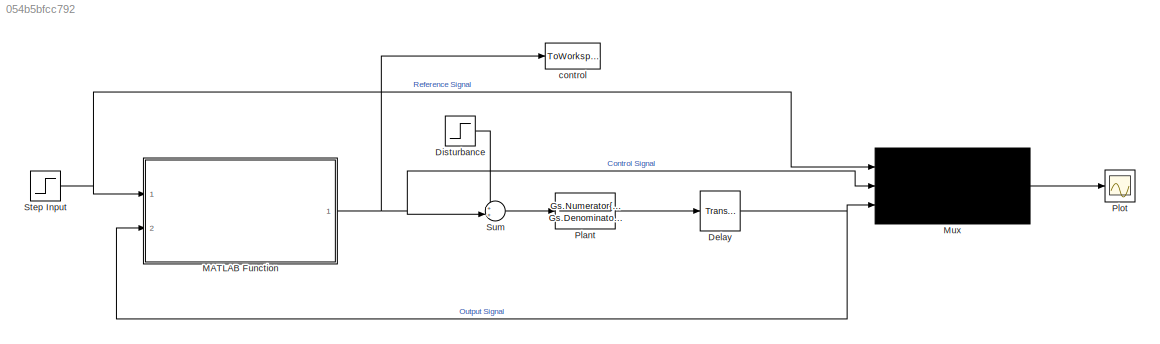
MODEL slx_054b5bfcc792
KIND model
CONFIG AbsTol = auto
CONFIG EnableMultiTasking = off
CONFIG FixedStep = auto
CONFIG MaxStep = auto
CONFIG MinStep = auto
CONFIG RelTol = 1e-3
CONFIG SampleTimeConstraint = Unconstrained
CONFIG Solver = VariableStepAuto
CONFIG SolverName = VariableStepAuto
CONFIG StartTime = 0.0
CONFIG StopTime = tSimulation
BLOCK [TransportDelay] Delay
  DelayTime = tDelay
  Ports = [1, 1]
BLOCK [Step] Disturbance
  After = dAmplitude
  SampleTime = 0
  Time = tDist
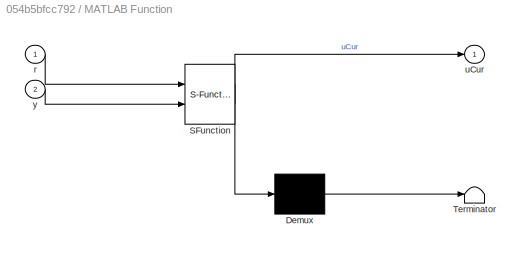
BLOCK [SubSystem] MATLAB Function
  ErrorFcn = Stateflow.Translate.translate
  PermitHierarchicalResolution = ExplicitOnly
  Ports = [2, 1]
  RequestExecContextInheritance = off
  SFBlockType = MATLAB Function
  TreatAsAtomicUnit = on
BLOCK [Demux] MATLAB Function/ Demux 
  Outputs = 1
  Ports = [1, 1]
BLOCK [S-Function] MATLAB Function/ SFunction 
  EnableBusSupport = on
  FunctionName = sf_sfun
  Parameters = K1,K2,a,alpha2,tDelta,umax,umin
  PortCounts = [2 2]
  Ports = [2, 2]
  SFcnIsStateOwnerBlock = off
  SFunctionDeploymentMode = off
  Tag = Stateflow S-Function 2
BLOCK [Terminator] MATLAB Function/ Terminator 
BLOCK [Inport] MATLAB Function/r
  IconDisplay = Port number
BLOCK [Outport] MATLAB Function/uCur
  IconDisplay = Port number
BLOCK [Inport] MATLAB Function/y
  IconDisplay = Port number
  Port = 2
BLOCK [Mux] Mux
  DisplayOption = signals
  Inputs = 3
  Ports = [3, 1]
BLOCK [TransferFcn] Plant
  Denominator = Gs.Denominator{1,1}
  Numerator = Gs.Numerator{1,1}
BLOCK [Scope] Plot
  Floating = off
  NumInputPorts = 1
  Ports = [1]
  ScopeSpecificationString = Simulink.scopes.TimeScopeBlockCfg('CurrentConfiguration', extmgr.ConfigurationSet(extmgr.Configuration('Core','General UI',true),extmgr.Configuration('Core','Source UI',true),extmgr.Configuration('Sources','WiredSimulink',true),extmgr.Configuration('Visuals','Time Domain',true,'SerializedDisplays',{struct('MinYLimReal','-4.25','MaxYLimReal','38.25','YLabelReal','','MinYLimMag','0.00000','MaxYLimMa...<+1409ch>
BLOCK [Step] Step Input
  SampleTime = tDelta
  Time = 0
BLOCK [Sum] Sum
  IconShape = round
  InputSameDT = off
  Inputs = ++|
  OutDataTypeStr = Inherit: Inherit via internal rule
  Ports = [2, 1]
  SaturateOnIntegerOverflow = off
BLOCK [ToWorkspace] control
  MaxDataPoints = 100000
  Ports = [1]
  VariableName = u
NET Delay:1 -> MATLAB Function:2, Mux:3
LINE Disturbance:1 -> Sum:1
NET MATLAB Function:1 -> Mux:2, Sum:2, control:1
LINE Mux:1 -> Plot:1
LINE Plant:1 -> Delay:1
NET Step Input:1 -> MATLAB Function:1, Mux:1
LINE Sum:1 -> Plant:1
note: NET lines group one-source signal fan-out (src -> all destinations, sorted); 1:1 wires keep LINE
CHART MATLAB Function states=1 transitions=1
  STATE_LABEL 'eML_blk_kernel()'
  STATE_LABEL 'SCRIPT:\nfunction uCur = PIEstim(r,y,K1, K2, alpha2, a, tDelta, umin, umax)\npersistent zhat\nif isempty(zhat)\n    zhat=0;\nend\n%estimator based MATLAB function with anti-windup\ndhat=zhat+K2*(y-r);\nuCur= -K1*(y-r)-dhat; \n% if (uCur>umax) uCur=umax;end\n% if (uCur<umin) uCur=umin;end\n%zhat=zhat-alpha2*zhat*tDelta-tDelta*(y-r)*K2*(alpha2-a)-tDelta*alpha2*udelay(1,ndmax);\nzhat=zhat-alpha2*zhat*tDelta-tDel...<+43ch>'
